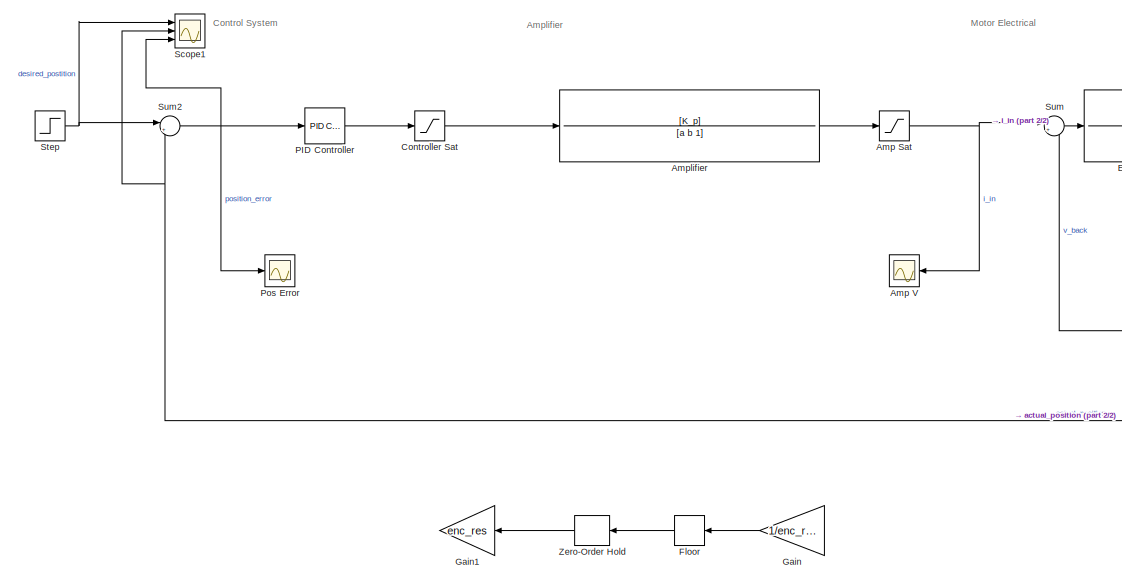
[diagram: root canvas - part 1/2, left side, full height]
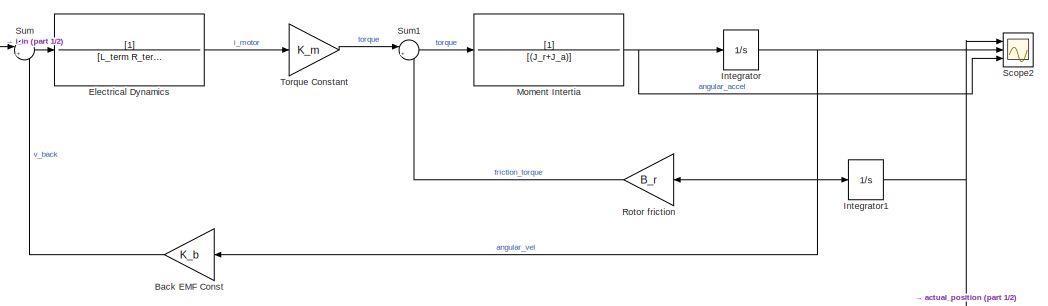
[diagram: root canvas - part 2/2, middle right region]
MODEL slx_8eef14acd62a
KIND model
CONFIG AbsTol = auto
CONFIG EnableMultiTasking = off
CONFIG FixedStep = 0.0001
CONFIG InitFcn = p_init;\n\n\n\n
CONFIG MaxStep = auto
CONFIG MinStep = auto
CONFIG RelTol = 0.01
CONFIG SampleTimeConstraint = Unconstrained
CONFIG SolverName = ode15s
CONFIG StartTime = 0.0
CONFIG StopTime = 3
BLOCK [Saturate] Amp Sat
  LowerLimit = v_min_amp
  UpperLimit = v_max_amp
BLOCK [Scope] Amp V
  Floating = off
  NumInputPorts = 1
  Ports = [1]
  ScopeSpecificationString = Simulink.scopes.TimeScopeBlockCfg('CurrentConfiguration', extmgr.ConfigurationSet(extmgr.Configuration('Core','General UI',true),extmgr.Configuration('Core','Source UI',true),extmgr.Configuration('Sources','WiredSimulink',true,'DataLoggingVariableName','ScopeData1'),extmgr.Configuration('Visuals','Time Domain',true,'SerializedDisplays',{struct('MinYLimReal','-7.35125','MaxYLimReal','7.36125','YLab...<+1445ch>
BLOCK [TransferFcn] Amplifier
  Denominator = [a b 1]
  Numerator = [K_p]
BLOCK [Gain] Back EMF Const
  Gain = K_b
BLOCK [Saturate] Controller Sat
  LowerLimit = -10
  UpperLimit = 10
BLOCK [TransferFcn] Electrical Dynamics
  Denominator = [L_term R_term]
BLOCK [Rounding] Floor
BLOCK [Gain] Gain
  Gain = 1/enc_res
BLOCK [Gain] Gain1
  Gain = enc_res
BLOCK [Integrator] Integrator
  Ports = [1, 1]
BLOCK [Integrator] Integrator1
  Ports = [1, 1]
BLOCK [TransferFcn] Moment Intertia
  Denominator = [(J_r+J_a)]
BLOCK [Reference] PID Controller  REF=pid_lib/PID Controller
  Ports = [1, 1]
  SourceBlock = pid_lib/PID Controller
  SourceProductBaseCode = SL
  SourceType = PID 1dof
BLOCK [Scope] Pos Error
  Floating = off
  NumInputPorts = 1
  Ports = [1]
  ScopeSpecificationString = Simulink.scopes.TimeScopeBlockCfg('CurrentConfiguration', extmgr.ConfigurationSet(extmgr.Configuration('Core','General UI',true),extmgr.Configuration('Core','Source UI',true),extmgr.Configuration('Sources','WiredSimulink',true),extmgr.Configuration('Visuals','Time Domain',true,'SerializedDisplays',{struct('MinYLimReal','-1.55078','MaxYLimReal','1.91764','YLabelReal','','MinYLimMag','0.00000','MaxY...<+1413ch>
BLOCK [Gain] Rotor friction
  Gain = B_r
BLOCK [Scope] Scope1
  Floating = off
  NumInputPorts = 3
  Ports = [3]
  ScopeSpecificationString = Simulink.scopes.TimeScopeBlockCfg('CurrentConfiguration', extmgr.ConfigurationSet(extmgr.Configuration('Core','General UI',true),extmgr.Configuration('Core','Source UI',true),extmgr.Configuration('Sources','WiredSimulink',true,'DataLoggingVariableName','ScopeData1'),extmgr.Configuration('Visuals','Time Domain',true,'SerializedDisplays',{struct('MinYLimReal','-1.70127','MaxYLimReal','3.27207','YLab...<+1511ch>
BLOCK [Scope] Scope2
  Floating = off
  NumInputPorts = 3
  Ports = [3]
  ScopeSpecificationString = Simulink.scopes.TimeScopeBlockCfg('CurrentConfiguration', extmgr.ConfigurationSet(extmgr.Configuration('Core','General UI',true),extmgr.Configuration('Core','Source UI',true),extmgr.Configuration('Sources','WiredSimulink',true,'DataLoggingVariableName','ScopeData2'),extmgr.Configuration('Visuals','Time Domain',true,'SerializedDisplays',{struct('MinYLimReal','-0.22339','MaxYLimReal','2.01048','YLab...<+2474ch>
BLOCK [Step] Step
  After = pi/2
  SampleTime = 0
  Time = 0
BLOCK [Sum] Sum
  Inputs = |+-
  Ports = [2, 1]
BLOCK [Sum] Sum1
  Inputs = |+-
  Ports = [2, 1]
BLOCK [Sum] Sum2
  Inputs = |+-
  Ports = [2, 1]
BLOCK [Gain] Torque Constant
  Gain = K_m
BLOCK [ZeroOrderHold] Zero-Order Hold
  SampleTime = 0.001
ANNOTATION (root): Amplifier
ANNOTATION (root): Control System
ANNOTATION (root): Motor Electrical
NET Amp Sat:1 -> Amp V:1, Sum:1
LINE Amplifier:1 -> Amp Sat:1
LINE Back EMF Const:1 -> Sum:2
LINE Controller Sat:1 -> Amplifier:1
LINE Electrical Dynamics:1 -> Torque Constant:1
LINE Floor:1 -> Zero-Order Hold:1
LINE Gain:1 -> Floor:1
NET Integrator1:1 -> Scope1:2, Scope2:1, Sum2:2
NET Integrator:1 -> Back EMF Const:1, Integrator1:1, Rotor friction:1, Scope2:2
NET Moment Intertia:1 -> Integrator:1, Scope2:3
LINE PID Controller:1 -> Controller Sat:1
LINE Rotor friction:1 -> Sum1:2
NET Step:1 -> Scope1:1, Sum2:1
LINE Sum1:1 -> Moment Intertia:1
NET Sum2:1 -> PID Controller:1, Pos Error:1, Scope1:3
LINE Sum:1 -> Electrical Dynamics:1
LINE Torque Constant:1 -> Sum1:1
LINE Zero-Order Hold:1 -> Gain1:1
note: NET lines group one-source signal fan-out (src -> all destinations, sorted); 1:1 wires keep LINE
